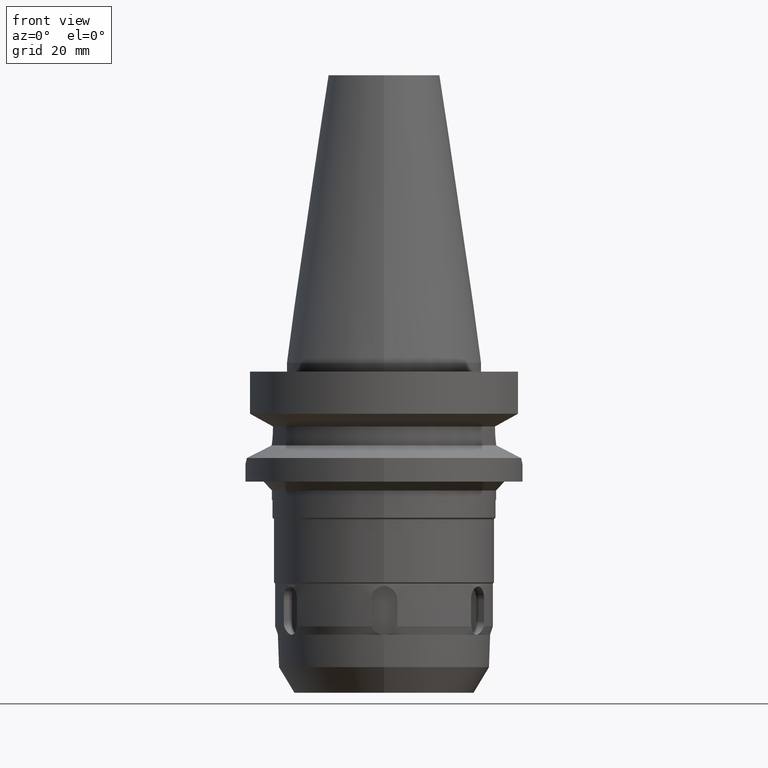
[diagram: clean part render]
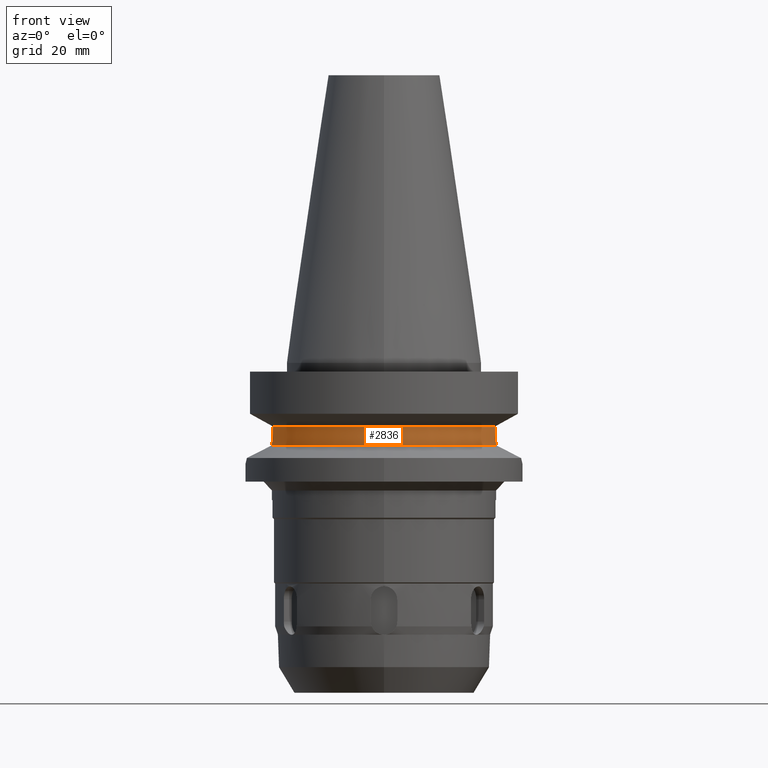
[diagram: same view with one face highlighted and labeled with its STEP entity id]
A machine part, front view. The second image highlights one B-rep face of the part: STEP entity #2836.
In plain terms, the highlighted cylindrical surface (partial cylindrical patch) has radius 26.5 mm, axis along (0, 0, -1).
Its self-contained STEP definition (entity closure, byte-faithful):
#217=DIRECTION('',(-2.942108281067E-6,9.227525574896E-6,9.999999999531E-1));
#218=VECTOR('',#217,4.977079078552E-1);
#219=CARTESIAN_POINT('',(-2.524772266958E1,-8.05E0,-1.495E1));
#220=LINE('',#219,#218);
#224=DIRECTION('',(1.011470635267E-6,3.172340986277E-6,-9.999999999945E-1));
#225=VECTOR('',#224,4.977550667165E-1);
#226=CARTESIAN_POINT('',(2.524772216612E1,-8.050001579049E0,-1.445224493329E1));
#227=LINE('',#226,#225);
#231=CARTESIAN_POINT('',(2.524772266958E1,-8.05E0,-1.495E1));
#232=CARTESIAN_POINT('',(2.524772266958E1,-8.05E0,-1.538836624581E1));
#233=CARTESIAN_POINT('',(2.527034454786E1,-7.979590381540E0,-1.625445348786E1));
#234=CARTESIAN_POINT('',(2.536984905223E1,-7.660468139847E0,-1.753893929126E1));
#235=CARTESIAN_POINT('',(2.547272591119E1,-7.310184643694E0,-1.835091906980E1));
#236=CARTESIAN_POINT('',(2.553175183775E1,-7.097862220093E0,-1.874774300139E1));
#241=CARTESIAN_POINT('',(-2.553175183775E1,-7.097862220093E0,
-1.874774300139E1));
#242=CARTESIAN_POINT('',(-2.547268458766E1,-7.310333288734E0,
-1.835064125690E1));
#243=CARTESIAN_POINT('',(-2.536978932798E1,-7.660659993583E0,
-1.753821801323E1));
#244=CARTESIAN_POINT('',(-2.527039941148E1,-7.979415271053E0,
-1.625525072301E1));
#245=CARTESIAN_POINT('',(-2.524772266958E1,-8.05E0,-1.538871362008E1));
#246=CARTESIAN_POINT('',(-2.524772266958E1,-8.05E0,-1.495E1));
#267=CARTESIAN_POINT('',(0.E0,1.065333950388E-14,-1.445225699861E1));
#268=DIRECTION('',(0.E0,0.E0,-1.E0));
#269=DIRECTION('',(9.527442516822E-1,-3.037735849057E-1,0.E0));
#270=AXIS2_PLACEMENT_3D('',#267,#268,#269);
#275=CARTESIAN_POINT('',(0.E0,1.065333950388E-14,-1.445225699861E1));
#276=DIRECTION('',(0.E0,0.E0,-1.E0));
#277=DIRECTION('',(0.E0,-1.E0,0.E0));
#278=AXIS2_PLACEMENT_3D('',#275,#276,#277);
#476=CARTESIAN_POINT('',(-2.553175183775E1,-7.097862220093E0,
-1.874774300139E1));
#481=CARTESIAN_POINT('',(0.E0,0.E0,-1.874774300139E1));
#482=DIRECTION('',(0.E0,0.E0,1.E0));
#483=DIRECTION('',(-9.634623335001E-1,-2.678438573620E-1,0.E0));
#484=AXIS2_PLACEMENT_3D('',#481,#482,#483);
#489=CARTESIAN_POINT('',(0.E0,0.E0,-1.874774300139E1));
#490=DIRECTION('',(0.E0,0.E0,1.E0));
#491=DIRECTION('',(0.E0,-1.E0,0.E0));
#492=AXIS2_PLACEMENT_3D('',#489,#490,#491);
#519=CARTESIAN_POINT('',(2.553175183775E1,-7.097862220093E0,-1.874774300139E1));
#2559=VERTEX_POINT('',#519);
#2560=VERTEX_POINT('',#231);
#2571=VERTEX_POINT('',#476);
#2572=CARTESIAN_POINT('',(0.E0,-2.65E1,-1.874774300139E1));
#2573=VERTEX_POINT('',#2572);
#2585=CARTESIAN_POINT('',(-2.524772266958E1,-8.05E0,-1.495E1));
#2586=VERTEX_POINT('',#2585);
#2587=CARTESIAN_POINT('',(-2.524772413389E1,-8.049995407388E0,
-1.445229209217E1));
#2588=VERTEX_POINT('',#2587);
#2589=CARTESIAN_POINT('',(2.524772266958E1,-8.05E0,-1.445225699861E1));
#2590=CARTESIAN_POINT('',(0.E0,-2.65E1,-1.445225699861E1));
#2591=VERTEX_POINT('',#2589);
#2592=VERTEX_POINT('',#2590);
#2814=CARTESIAN_POINT('',(0.E0,2.111536011090E-14,7.242E1));
#2815=DIRECTION('',(0.E0,0.E0,-1.E0));
#2816=DIRECTION('',(0.E0,-1.E0,0.E0));
#2817=AXIS2_PLACEMENT_3D('',#2814,#2815,#2816);
#2818=CYLINDRICAL_SURFACE('',#2817,2.65E1);
#2819=ORIENTED_EDGE('',*,*,#2801,.T.);
#2821=ORIENTED_EDGE('',*,*,#2820,.F.);
#2823=ORIENTED_EDGE('',*,*,#2822,.F.);
#2825=ORIENTED_EDGE('',*,*,#2824,.T.);
#2827=ORIENTED_EDGE('',*,*,#2826,.T.);
#2829=ORIENTED_EDGE('',*,*,#2828,.F.);
#2831=ORIENTED_EDGE('',*,*,#2830,.F.);
#2833=ORIENTED_EDGE('',*,*,#2832,.T.);
#2834=EDGE_LOOP('',(#2819,#2821,#2823,#2825,#2827,#2829,#2831,#2833));
#2835=FACE_OUTER_BOUND('',#2834,.F.);
#237=B_SPLINE_CURVE_WITH_KNOTS('',3,(#231,#232,#233,#234,#235,#236),
.UNSPECIFIED.,.F.,.F.,(4,1,1,4),(0.E0,3.333333333333E-1,6.666666666667E-1,1.E0),
.UNSPECIFIED.);
#247=B_SPLINE_CURVE_WITH_KNOTS('',3,(#241,#242,#243,#244,#245,#246),
.UNSPECIFIED.,.F.,.F.,(4,1,1,4),(0.E0,3.333333333333E-1,6.666666666667E-1,1.E0),
.UNSPECIFIED.);
#271=CIRCLE('',#270,2.65E1);
#279=CIRCLE('',#278,2.65E1);
#485=CIRCLE('',#484,2.65E1);
#493=CIRCLE('',#492,2.65E1);
#2801=EDGE_CURVE('',#2586,#2588,#220,.T.);
#2820=EDGE_CURVE('',#2592,#2588,#279,.T.);
#2822=EDGE_CURVE('',#2591,#2592,#271,.T.);
#2824=EDGE_CURVE('',#2591,#2560,#227,.T.);
#2826=EDGE_CURVE('',#2560,#2559,#237,.T.);
#2828=EDGE_CURVE('',#2573,#2559,#493,.T.);
#2830=EDGE_CURVE('',#2571,#2573,#485,.T.);
#2832=EDGE_CURVE('',#2571,#2586,#247,.T.);
#2836=ADVANCED_FACE('',(#2835),#2818,.T.);